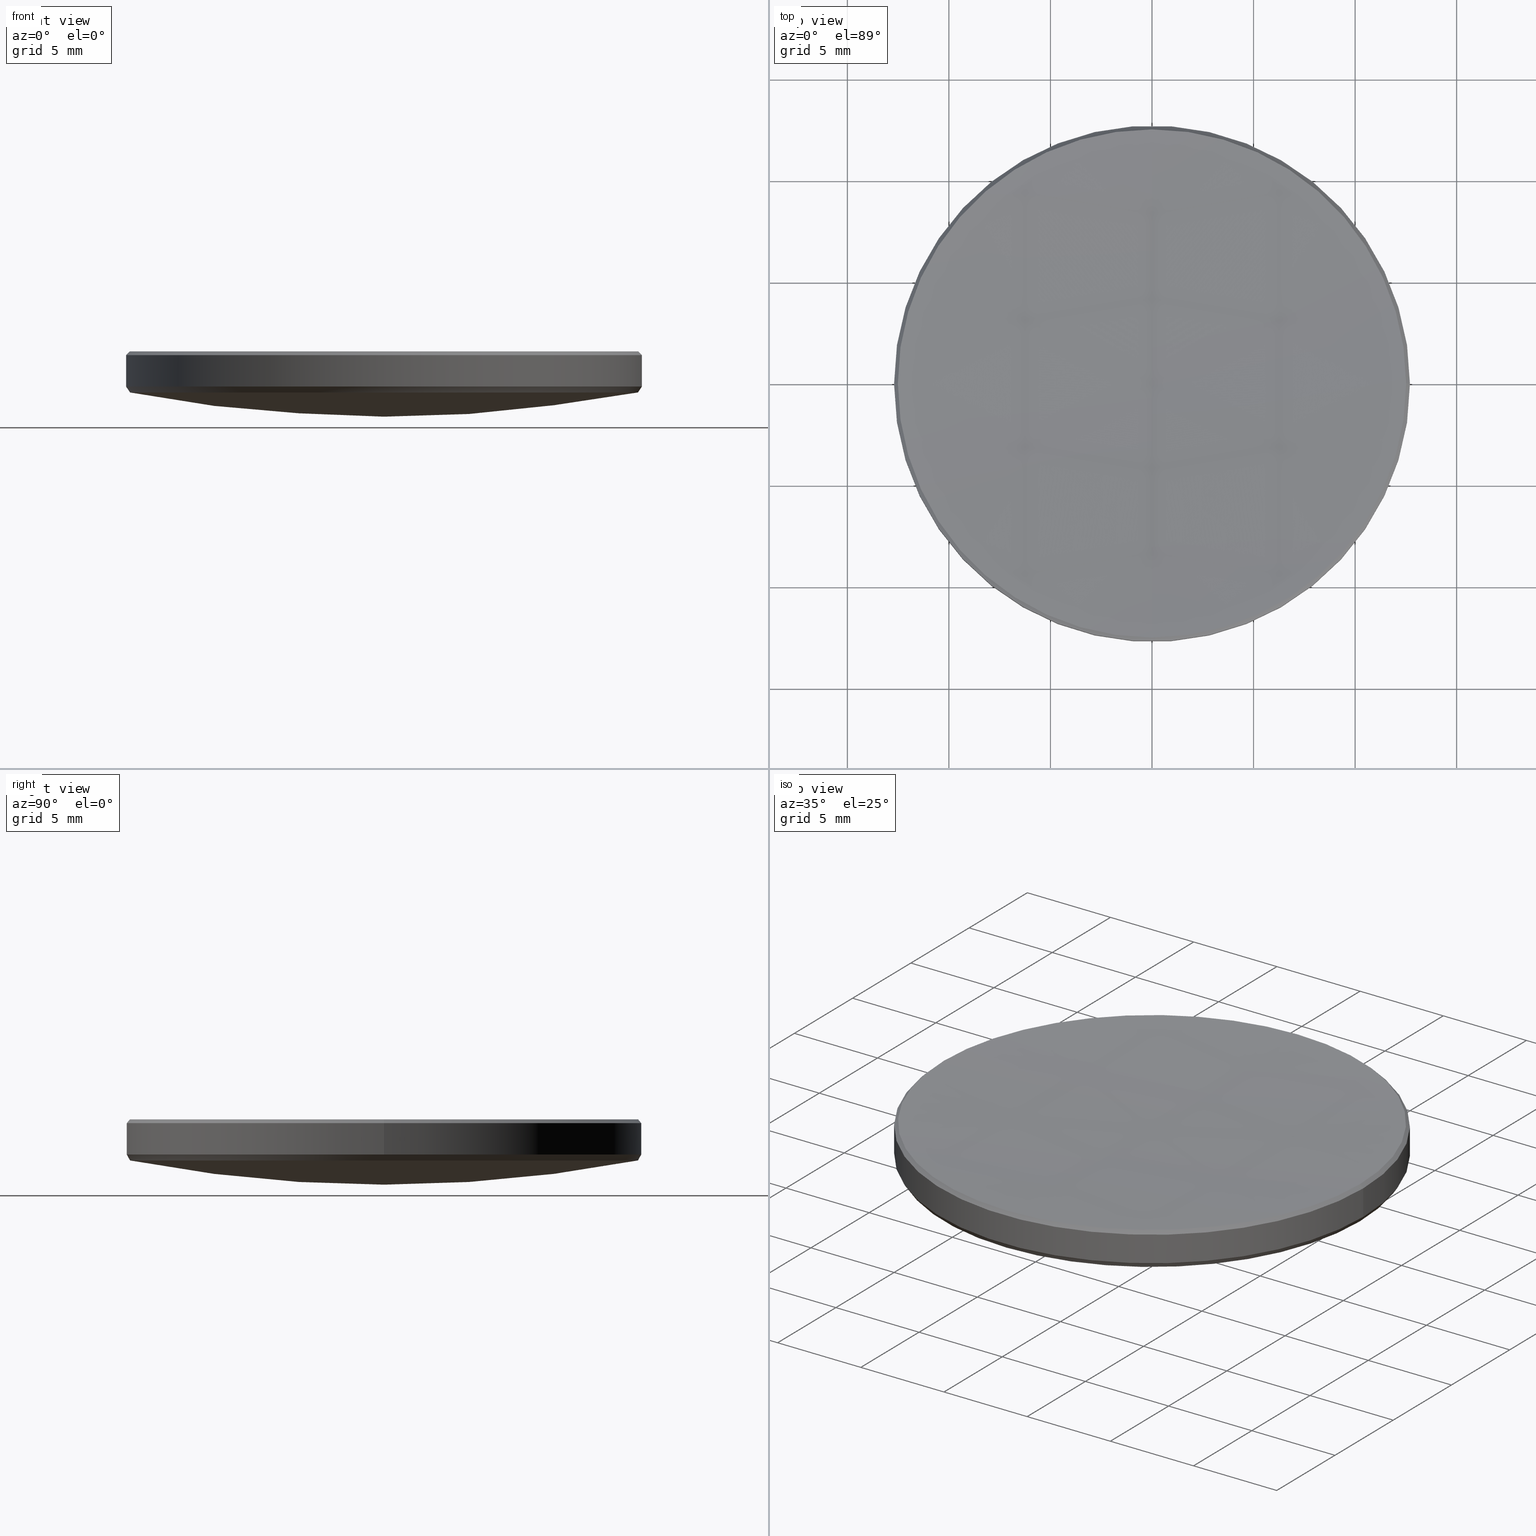
[diagram: canonical four-view strip — front | top / right | iso, engineering-drawing reading convention]
A machine part, canonical four-view strip (front | top / right | iso — engineering-drawing reading convention). The complete STEP part file that produces these views, byte-faithful:
ISO-10303-21;
HEADER;
FILE_DESCRIPTION (( 'STEP AP214' ),
    '1' );
FILE_NAME ('GLM1-025B-200-SWIR.STEP',
    '2024-08-09T02:17:19',
    ( 'Windows User' ),
    ( 'P R C' ),
    'SwSTEP 2.0',
    'SolidWorks 2022',
    '' );
FILE_SCHEMA (( 'AUTOMOTIVE_DESIGN' ));
ENDSEC;

DATA;
#1 = DIRECTION ( 'NONE',  ( -0.000000000000000000, -0.000000000000000000, 1.000000000000000000 ) ) ;
#2 = AXIS2_PLACEMENT_3D ( 'NONE', #40, #325, #13 ) ;
#3 = PRODUCT_DEFINITION ( 'δ֪', '', #328, #277 ) ;
#4 = AXIS2_PLACEMENT_3D ( 'NONE', #157, #29, #289 ) ;
#5 = CARTESIAN_POINT ( 'NONE',  ( 0.000000000000000000, 12.50395849586554675, 3.961956115965656444 ) ) ;
#6 = ORIENTED_EDGE ( 'NONE', *, *, #269, .T. ) ;
#7 = DIRECTION ( 'NONE',  ( -1.224646799147352961E-16, -1.000000000000000000, 0.000000000000000000 ) ) ;
#8 = VERTEX_POINT ( 'NONE', #5 ) ;
#9 =( NAMED_UNIT ( * ) PLANE_ANGLE_UNIT ( ) SI_UNIT ( $, .RADIAN. ) );
#10 = AXIS2_PLACEMENT_3D ( 'NONE', #252, #99, #126 ) ;
#11 = STYLED_ITEM ( 'NONE', ( #81 ), #223 ) ;
#12 = DIRECTION ( 'NONE',  ( -1.000000000000000000, 0.000000000000000000, 0.000000000000000000 ) ) ;
#13 = DIRECTION ( 'NONE',  ( -1.000000000000000000, 0.000000000000000000, 0.000000000000000000 ) ) ;
#14 = SURFACE_STYLE_FILL_AREA ( #43 ) ;
#15 = ORIENTED_EDGE ( 'NONE', *, *, #234, .F. ) ;
#16 = CYLINDRICAL_SURFACE ( 'NONE', #160, 12.69999999999999929 ) ;
#17 = AXIS2_PLACEMENT_3D ( 'NONE', #256, #279, #315 ) ;
#18 = ORIENTED_EDGE ( 'NONE', *, *, #75, .T. ) ;
#19 = CARTESIAN_POINT ( 'NONE',  ( 0.000000000000000000, 0.000000000000000000, 4.253353967830220128 ) ) ;
#20 = VERTEX_POINT ( 'NONE', #259 ) ;
#21 = EDGE_LOOP ( 'NONE', ( #276, #222, #330, #190, #125 ) ) ;
#22 = AXIS2_PLACEMENT_3D ( 'NONE', #33, #134, #209 ) ;
#23 = AXIS2_PLACEMENT_3D ( 'NONE', #91, #191, #273 ) ;
#24 = DIRECTION ( 'NONE',  ( 0.000000000000000000, 0.000000000000000000, -1.000000000000000000 ) ) ;
#25 = CONICAL_SURFACE ( 'NONE', #60, 12.51297231911478214, 0.7853981633974530530 ) ;
#26 = ORIENTED_EDGE ( 'NONE', *, *, #303, .F. ) ;
#27 = CIRCLE ( 'NONE', #203, 12.51297231911478569 ) ;
#28 = EDGE_CURVE ( 'NONE', #245, #302, #105, .T. ) ;
#29 = DIRECTION ( 'NONE',  ( -1.000000000000000000, 0.000000000000000000, 0.000000000000000000 ) ) ;
#30 = DIRECTION ( 'NONE',  ( -1.000000000000000000, 0.000000000000000000, 0.000000000000000000 ) ) ;
#31 =( NAMED_UNIT ( * ) SI_UNIT ( $, .STERADIAN. ) SOLID_ANGLE_UNIT ( ) );
#32 = ADVANCED_FACE ( 'NONE', ( #206 ), #25, .T. ) ;
#33 = CARTESIAN_POINT ( 'NONE',  ( 0.000000000000000000, 0.000000000000000000, 3.961956115965656444 ) ) ;
#34 = SURFACE_STYLE_FILL_AREA ( #260 ) ;
#35 = DIRECTION ( 'NONE',  ( 1.000000000000000000, 0.000000000000000000, 0.000000000000000000 ) ) ;
#36 = PRESENTATION_LAYER_ASSIGNMENT (  '', '', ( #287 ) ) ;
#37 = AXIS2_PLACEMENT_3D ( 'NONE', #100, #54, #253 ) ;
#38 = ADVANCED_FACE ( 'NONE', ( #318 ), #107, .T. ) ;
#39 = LINE ( 'NONE', #137, #180 ) ;
#40 = CARTESIAN_POINT ( 'NONE',  ( 0.000000000000000000, 0.000000000000000000, 4.253353967830220128 ) ) ;
#41 = DIRECTION ( 'NONE',  ( -0.000000000000000000, -0.000000000000000000, -1.000000000000000000 ) ) ;
#42 =( GEOMETRIC_REPRESENTATION_CONTEXT ( 3 ) GLOBAL_UNCERTAINTY_ASSIGNED_CONTEXT ( ( #212 ) ) GLOBAL_UNIT_ASSIGNED_CONTEXT ( ( #246, #196, #73 ) ) REPRESENTATION_CONTEXT ( 'NONE', 'WORKASPACE' ) );
#43 = FILL_AREA_STYLE ('',( #295 ) ) ;
#44 = EDGE_LOOP ( 'NONE', ( #90, #18, #115, #121, #175 ) ) ;
#45 = ORIENTED_EDGE ( 'NONE', *, *, #207, .T. ) ;
#46 = DIRECTION ( 'NONE',  ( -1.000000000000000000, 0.000000000000000000, 0.000000000000000000 ) ) ;
#47 = AXIS2_PLACEMENT_3D ( 'NONE', #220, #249, #254 ) ;
#48 = CONICAL_SURFACE ( 'NONE', #232, 12.69999999999999929, 0.5922108289621466071 ) ;
#49 = ORIENTED_EDGE ( 'NONE', *, *, #28, .T. ) ;
#50 = ADVANCED_FACE ( 'NONE', ( #153 ), #235, .F. ) ;
#51 = DIRECTION ( 'NONE',  ( -0.000000000000000000, -0.000000000000000000, 1.000000000000000000 ) ) ;
#52 = CARTESIAN_POINT ( 'NONE',  ( -12.69999999999999929, 0.000000000000000000, 5.800000000000027356 ) ) ;
#53 = ORIENTED_EDGE ( 'NONE', *, *, #177, .T. ) ;
#54 = DIRECTION ( 'NONE',  ( -1.000000000000000000, 0.000000000000000000, 0.000000000000000000 ) ) ;
#55 = EDGE_CURVE ( 'NONE', #8, #245, #231, .T. ) ;
#56 = APPLICATION_PROTOCOL_DEFINITION ( 'draft international standard', 'automotive_design', 1998, #274 ) ;
#57 = VERTEX_POINT ( 'NONE', #233 ) ;
#58 = FILL_AREA_STYLE_COLOUR ( '', #116 ) ;
#59 = DIRECTION ( 'NONE',  ( 0.000000000000000000, 0.000000000000000000, -1.000000000000000000 ) ) ;
#60 = AXIS2_PLACEMENT_3D ( 'NONE', #286, #59, #156 ) ;
#61 = DIRECTION ( 'NONE',  ( 1.000000000000000000, 0.000000000000000000, 0.000000000000000000 ) ) ;
#62 = DIRECTION ( 'NONE',  ( 0.5581967294551084535, 0.000000000000000000, 0.8297086303188730971 ) ) ;
#63 = CONICAL_SURFACE ( 'NONE', #294, 12.51297231911478214, 0.7853981633974530530 ) ;
#64 = VECTOR ( 'NONE', #62, 1000.000000000000000 ) ;
#65 = FACE_OUTER_BOUND ( 'NONE', #317, .T. ) ;
#66 = ORIENTED_EDGE ( 'NONE', *, *, #70, .F. ) ;
#67 = FACE_OUTER_BOUND ( 'NONE', #225, .T. ) ;
#68 = AXIS2_PLACEMENT_3D ( 'NONE', #258, #132, #30 ) ;
#69 = CIRCLE ( 'NONE', #77, 12.69999999999999929 ) ;
#70 = EDGE_CURVE ( 'NONE', #106, #181, #205, .T. ) ;
#71 = CARTESIAN_POINT ( 'NONE',  ( -12.69999999999999929, 0.000000000000000000, 10.00000000000000000 ) ) ;
#72 = ORIENTED_EDGE ( 'NONE', *, *, #103, .F. ) ;
#73 =( NAMED_UNIT ( * ) SI_UNIT ( $, .STERADIAN. ) SOLID_ANGLE_UNIT ( ) );
#74 = DIRECTION ( 'NONE',  ( -0.5581967294551084535, 6.835938380217195988E-17, 0.8297086303188730971 ) ) ;
#75 = EDGE_CURVE ( 'NONE', #248, #181, #201, .T. ) ;
#76 = DIRECTION ( 'NONE',  ( -1.000000000000000000, 1.224646799147353207E-16, 0.000000000000000000 ) ) ;
#77 = AXIS2_PLACEMENT_3D ( 'NONE', #163, #240, #239 ) ;
#78 = ORIENTED_EDGE ( 'NONE', *, *, #316, .F. ) ;
#79 = DIRECTION ( 'NONE',  ( -0.000000000000000000, -0.000000000000000000, 1.000000000000000000 ) ) ;
#80 = EDGE_LOOP ( 'NONE', ( #26, #15, #173, #169, #236 ) ) ;
#81 = PRESENTATION_STYLE_ASSIGNMENT (( #154 ) ) ;
#82 = DIRECTION ( 'NONE',  ( 0.000000000000000000, 0.000000000000000000, -1.000000000000000000 ) ) ;
#83 = ADVANCED_FACE ( 'NONE', ( #247 ), #63, .T. ) ;
#84 = FACE_OUTER_BOUND ( 'NONE', #87, .T. ) ;
#85 = AXIS2_PLACEMENT_3D ( 'NONE', #133, #82, #61 ) ;
#86 =( NAMED_UNIT ( * ) SI_UNIT ( $, .STERADIAN. ) SOLID_ANGLE_UNIT ( ) );
#87 = EDGE_LOOP ( 'NONE', ( #120, #195, #272, #129 ) ) ;
#88 = DIRECTION ( 'NONE',  ( -1.000000000000000000, 0.000000000000000000, 0.000000000000000000 ) ) ;
#89 = CARTESIAN_POINT ( 'NONE',  ( 0.000000000000000000, 0.000000000000000000, 68.91943083545942272 ) ) ;
#90 = ORIENTED_EDGE ( 'NONE', *, *, #184, .F. ) ;
#91 = CARTESIAN_POINT ( 'NONE',  ( 0.000000000000000000, 0.000000000000000000, 68.91943083545942272 ) ) ;
#92 = EDGE_CURVE ( 'NONE', #94, #302, #95, .T. ) ;
#93 = DIRECTION ( 'NONE',  ( 1.000000000000000000, 0.000000000000000000, 0.000000000000000000 ) ) ;
#94 = VERTEX_POINT ( 'NONE', #224 ) ;
#95 = CIRCLE ( 'NONE', #47, 66.15000000000000568 ) ;
#96 = VERTEX_POINT ( 'NONE', #194 ) ;
#97 = PRODUCT_RELATED_PRODUCT_CATEGORY ( 'part', '', ( #113 ) ) ;
#98 = ORIENTED_EDGE ( 'NONE', *, *, #92, .F. ) ;
#99 = DIRECTION ( 'NONE',  ( -0.000000000000000000, -0.000000000000000000, 1.000000000000000000 ) ) ;
#100 = CARTESIAN_POINT ( 'NONE',  ( 0.000000000000000000, 0.000000000000000000, 187.7468186791724918 ) ) ;
#101 = CIRCLE ( 'NONE', #271, 12.69999999999999929 ) ;
#102 = DIRECTION ( 'NONE',  ( 1.000000000000000000, 0.000000000000000000, 0.000000000000000000 ) ) ;
#103 = EDGE_CURVE ( 'NONE', #94, #8, #283, .T. ) ;
#104 = PRODUCT_DEFINITION_SHAPE ( 'NONE', 'NONE',  #3 ) ;
#105 = CIRCLE ( 'NONE', #22, 12.50395849586555030 ) ;
#106 = VERTEX_POINT ( 'NONE', #52 ) ;
#107 = CYLINDRICAL_SURFACE ( 'NONE', #68, 12.69999999999999929 ) ;
#108 = ORIENTED_EDGE ( 'NONE', *, *, #92, .T. ) ;
#109 = MECHANICAL_DESIGN_GEOMETRIC_PRESENTATION_REPRESENTATION (  '', ( #287 ), #327 ) ;
#110 = AXIS2_PLACEMENT_3D ( 'NONE', #323, #307, #297 ) ;
#111 = LINE ( 'NONE', #211, #64 ) ;
#112 = DIRECTION ( 'NONE',  ( 0.000000000000000000, 0.000000000000000000, -1.000000000000000000 ) ) ;
#113 = PRODUCT ( 'GLM1-025B-200-SWIR', 'GLM1-025B-200-SWIR', '', ( #284 ) ) ;
#114 = DIRECTION ( 'NONE',  ( -1.000000000000000000, 0.000000000000000000, 0.000000000000000000 ) ) ;
#115 = ORIENTED_EDGE ( 'NONE', *, *, #130, .F. ) ;
#116 = COLOUR_RGB ( '',1.000000000000000000, 1.000000000000000000, 1.000000000000000000 ) ;
#117 = FACE_OUTER_BOUND ( 'NONE', #215, .T. ) ;
#118 =( LENGTH_UNIT ( ) NAMED_UNIT ( * ) SI_UNIT ( .MILLI., .METRE. ) );
#119 = EDGE_CURVE ( 'NONE', #243, #57, #300, .T. ) ;
#120 = ORIENTED_EDGE ( 'NONE', *, *, #123, .F. ) ;
#121 = ORIENTED_EDGE ( 'NONE', *, *, #213, .F. ) ;
#122 = CIRCLE ( 'NONE', #313, 12.69999999999999929 ) ;
#123 = EDGE_CURVE ( 'NONE', #96, #57, #131, .T. ) ;
#124 = CIRCLE ( 'NONE', #110, 182.1899999999999977 ) ;
#125 = ORIENTED_EDGE ( 'NONE', *, *, #177, .F. ) ;
#126 = DIRECTION ( 'NONE',  ( 1.000000000000000000, 0.000000000000000000, 0.000000000000000000 ) ) ;
#127 = AXIS2_PLACEMENT_3D ( 'NONE', #244, #136, #35 ) ;
#128 = FACE_OUTER_BOUND ( 'NONE', #44, .T. ) ;
#129 = ORIENTED_EDGE ( 'NONE', *, *, #119, .T. ) ;
#130 = EDGE_CURVE ( 'NONE', #166, #181, #101, .T. ) ;
#131 = CIRCLE ( 'NONE', #312, 182.1899999999999977 ) ;
#132 = DIRECTION ( 'NONE',  ( -0.000000000000000000, -0.000000000000000000, -1.000000000000000000 ) ) ;
#133 = CARTESIAN_POINT ( 'NONE',  ( 0.000000000000000000, 0.000000000000000000, 3.961956115965656444 ) ) ;
#134 = DIRECTION ( 'NONE',  ( 0.000000000000000000, 0.000000000000000000, -1.000000000000000000 ) ) ;
#135 = AXIS2_PLACEMENT_3D ( 'NONE', #230, #257, #228 ) ;
#136 = DIRECTION ( 'NONE',  ( 0.000000000000000000, 0.000000000000000000, -1.000000000000000000 ) ) ;
#137 = CARTESIAN_POINT ( 'NONE',  ( 12.51297231911478214, 1.532397149842335037E-15, 5.987027680885242731 ) ) ;
#138 =( NAMED_UNIT ( * ) PLANE_ANGLE_UNIT ( ) SI_UNIT ( $, .RADIAN. ) );
#139 = ORIENTED_EDGE ( 'NONE', *, *, #70, .T. ) ;
#140 = CIRCLE ( 'NONE', #2, 12.69999999999999929 ) ;
#141 = CARTESIAN_POINT ( 'NONE',  ( -12.69999999999999929, 0.000000000000000000, 4.253353967830220128 ) ) ;
#142 = ORIENTED_EDGE ( 'NONE', *, *, #130, .T. ) ;
#143 = MANIFOLD_SOLID_BREP ( '����1', #308 ) ;
#144 = ORIENTED_EDGE ( 'NONE', *, *, #198, .T. ) ;
#145 = AXIS2_PLACEMENT_3D ( 'NONE', #89, #114, #189 ) ;
#146 = DIRECTION ( 'NONE',  ( 0.000000000000000000, 0.000000000000000000, -1.000000000000000000 ) ) ;
#147 = ORIENTED_EDGE ( 'NONE', *, *, #207, .F. ) ;
#148 = CARTESIAN_POINT ( 'NONE',  ( 0.000000000000000000, 0.000000000000000000, 5.987027680885187664 ) ) ;
#149 = ADVANCED_FACE ( 'NONE', ( #65 ), #165, .T. ) ;
#150 = ORIENTED_EDGE ( 'NONE', *, *, #184, .T. ) ;
#151 = DIRECTION ( 'NONE',  ( 1.000000000000000000, 0.000000000000000000, 0.000000000000000000 ) ) ;
#152 = VECTOR ( 'NONE', #164, 1000.000000000000114 ) ;
#153 = FACE_OUTER_BOUND ( 'NONE', #296, .T. ) ;
#154 = SURFACE_STYLE_USAGE ( .BOTH. , #210 ) ;
#155 =( GEOMETRIC_REPRESENTATION_CONTEXT ( 3 ) GLOBAL_UNCERTAINTY_ASSIGNED_CONTEXT ( ( #161 ) ) GLOBAL_UNIT_ASSIGNED_CONTEXT ( ( #204, #9, #31 ) ) REPRESENTATION_CONTEXT ( 'NONE', 'WORKASPACE' ) );
#156 = DIRECTION ( 'NONE',  ( -1.000000000000000000, 0.000000000000000000, 0.000000000000000000 ) ) ;
#157 = CARTESIAN_POINT ( 'NONE',  ( 0.000000000000000000, 0.000000000000000000, 187.7468186791724918 ) ) ;
#158 = COLOUR_RGB ( '',1.000000000000000000, 1.000000000000000000, 1.000000000000000000 ) ;
#159 = PRESENTATION_LAYER_ASSIGNMENT (  '', '', ( #11 ) ) ;
#160 = AXIS2_PLACEMENT_3D ( 'NONE', #216, #322, #88 ) ;
#161 = UNCERTAINTY_MEASURE_WITH_UNIT (LENGTH_MEASURE( 1.000000000000000082E-05 ), #204, 'distance_accuracy_value', 'NONE');
#162 = CARTESIAN_POINT ( 'NONE',  ( -12.51297231911478214, 0.000000000000000000, 5.987027680885242731 ) ) ;
#163 = CARTESIAN_POINT ( 'NONE',  ( 0.000000000000000000, 0.000000000000000000, 5.800000000000027356 ) ) ;
#164 = DIRECTION ( 'NONE',  ( -0.7071067811865507924, 0.000000000000000000, -0.7071067811865441310 ) ) ;
#165 = SPHERICAL_SURFACE ( 'NONE', #145, 66.15000000000000568 ) ;
#166 = VERTEX_POINT ( 'NONE', #168 ) ;
#167 = CARTESIAN_POINT ( 'NONE',  ( 12.69999999999999929, 1.555301434917138433E-15, 10.00000000000000000 ) ) ;
#168 = CARTESIAN_POINT ( 'NONE',  ( 12.69999999999999929, 1.555301434917138433E-15, 4.253353967830220128 ) ) ;
#169 = ORIENTED_EDGE ( 'NONE', *, *, #291, .T. ) ;
#170 = CIRCLE ( 'NONE', #226, 12.50395849586555030 ) ;
#171 = EDGE_CURVE ( 'NONE', #217, #106, #122, .T. ) ;
#172 = DIRECTION ( 'NONE',  ( -0.000000000000000000, -0.000000000000000000, -1.000000000000000000 ) ) ;
#173 = ORIENTED_EDGE ( 'NONE', *, *, #119, .F. ) ;
#174 = DIRECTION ( 'NONE',  ( 1.000000000000000000, -0.000000000000000000, 0.000000000000000000 ) ) ;
#175 = ORIENTED_EDGE ( 'NONE', *, *, #55, .F. ) ;
#176 = VERTEX_POINT ( 'NONE', #292 ) ;
#177 = EDGE_CURVE ( 'NONE', #181, #166, #140, .T. ) ;
#178 = CARTESIAN_POINT ( 'NONE',  ( 0.000000000000000000, 0.000000000000000000, 4.253353967830220128 ) ) ;
#179 = SPHERICAL_SURFACE ( 'NONE', #37, 182.1899999999999977 ) ;
#180 = VECTOR ( 'NONE', #241, 1000.000000000000114 ) ;
#181 = VERTEX_POINT ( 'NONE', #141 ) ;
#182 = AXIS2_PLACEMENT_3D ( 'NONE', #305, #174, #146 ) ;
#183 = ORIENTED_EDGE ( 'NONE', *, *, #269, .F. ) ;
#184 = EDGE_CURVE ( 'NONE', #248, #8, #208, .T. ) ;
#185 = DIRECTION ( 'NONE',  ( 0.000000000000000000, 0.000000000000000000, -1.000000000000000000 ) ) ;
#186 = LINE ( 'NONE', #162, #152 ) ;
#187 = APPLICATION_CONTEXT ( 'automotive_design' ) ;
#188 = ORIENTED_EDGE ( 'NONE', *, *, #123, .T. ) ;
#189 = DIRECTION ( 'NONE',  ( 0.000000000000000000, 1.000000000000000000, 0.000000000000000000 ) ) ;
#190 = ORIENTED_EDGE ( 'NONE', *, *, #213, .T. ) ;
#191 = DIRECTION ( 'NONE',  ( -1.000000000000000000, 0.000000000000000000, 0.000000000000000000 ) ) ;
#192 = ADVANCED_FACE ( 'NONE', ( #299 ), #48, .T. ) ;
#193 = CARTESIAN_POINT ( 'NONE',  ( 0.000000000000000000, 0.000000000000000000, 3.961956115965656444 ) ) ;
#194 = CARTESIAN_POINT ( 'NONE',  ( 0.000000000000000000, 1.115592001683281265E-14, 5.556818679172486952 ) ) ;
#195 = ORIENTED_EDGE ( 'NONE', *, *, #316, .T. ) ;
#196 =( NAMED_UNIT ( * ) PLANE_ANGLE_UNIT ( ) SI_UNIT ( $, .RADIAN. ) );
#197 = CARTESIAN_POINT ( 'NONE',  ( 0.000000000000000000, 0.000000000000000000, 187.7468186791724918 ) ) ;
#198 = EDGE_CURVE ( 'NONE', #302, #248, #170, .T. ) ;
#199 = ORIENTED_EDGE ( 'NONE', *, *, #282, .F. ) ;
#200 = CARTESIAN_POINT ( 'NONE',  ( -12.51297231911478569, 0.000000000000000000, 5.987027680885187664 ) ) ;
#201 = LINE ( 'NONE', #280, #237 ) ;
#202 = CARTESIAN_POINT ( 'NONE',  ( -12.50395849586555030, 1.543297354890224221E-15, 3.961956115965656444 ) ) ;
#203 = AXIS2_PLACEMENT_3D ( 'NONE', #148, #1, #102 ) ;
#204 =( LENGTH_UNIT ( ) NAMED_UNIT ( * ) SI_UNIT ( .MILLI., .METRE. ) );
#205 = LINE ( 'NONE', #71, #242 ) ;
#206 = FACE_OUTER_BOUND ( 'NONE', #321, .T. ) ;
#207 = EDGE_CURVE ( 'NONE', #106, #217, #69, .T. ) ;
#208 = CIRCLE ( 'NONE', #127, 12.50395849586555030 ) ;
#209 = DIRECTION ( 'NONE',  ( 1.000000000000000000, 0.000000000000000000, 0.000000000000000000 ) ) ;
#210 = SURFACE_SIDE_STYLE ('',( #34 ) ) ;
#211 = CARTESIAN_POINT ( 'NONE',  ( 12.69999999999999929, 0.000000000000000000, 4.253353967830220128 ) ) ;
#212 = UNCERTAINTY_MEASURE_WITH_UNIT (LENGTH_MEASURE( 1.000000000000000082E-05 ), #246, 'distance_accuracy_value', 'NONE');
#213 = EDGE_CURVE ( 'NONE', #245, #166, #111, .T. ) ;
#214 = SURFACE_STYLE_USAGE ( .BOTH. , #265 ) ;
#215 = EDGE_LOOP ( 'NONE', ( #45, #311, #142, #66 ) ) ;
#216 = CARTESIAN_POINT ( 'NONE',  ( 0.000000000000000000, 0.000000000000000000, 10.00000000000000000 ) ) ;
#217 = VERTEX_POINT ( 'NONE', #320 ) ;
#218 = SPHERICAL_SURFACE ( 'NONE', #23, 66.15000000000000568 ) ;
#219 = DIRECTION ( 'NONE',  ( -0.000000000000000000, -0.000000000000000000, 1.000000000000000000 ) ) ;
#220 = CARTESIAN_POINT ( 'NONE',  ( 0.000000000000000000, 0.000000000000000000, 68.91943083545942272 ) ) ;
#221 = MECHANICAL_DESIGN_GEOMETRIC_PRESENTATION_REPRESENTATION (  '', ( #11 ), #155 ) ;
#222 = ORIENTED_EDGE ( 'NONE', *, *, #198, .F. ) ;
#223 = ADVANCED_BREP_SHAPE_REPRESENTATION ( 'GLM1-025B-200-SWIR', ( #143, #135 ), #42 ) ;
#224 = CARTESIAN_POINT ( 'NONE',  ( 0.000000000000000000, 4.050519288179870232E-15, 2.769430835459427254 ) ) ;
#225 = EDGE_LOOP ( 'NONE', ( #72, #108, #144, #150 ) ) ;
#226 = AXIS2_PLACEMENT_3D ( 'NONE', #193, #185, #262 ) ;
#227 = SHAPE_DEFINITION_REPRESENTATION ( #104, #223 ) ;
#228 = DIRECTION ( 'NONE',  ( 1.000000000000000000, 0.000000000000000000, 0.000000000000000000 ) ) ;
#229 = ADVANCED_FACE ( 'NONE', ( #84 ), #179, .F. ) ;
#230 = CARTESIAN_POINT ( 'NONE',  ( 0.000000000000000000, 0.000000000000000000, 0.000000000000000000 ) ) ;
#231 = CIRCLE ( 'NONE', #85, 12.50395849586555030 ) ;
#232 = AXIS2_PLACEMENT_3D ( 'NONE', #19, #219, #93 ) ;
#233 = CARTESIAN_POINT ( 'NONE',  ( -1.532397149842306047E-15, -12.51297231911454411, 5.987027680885187664 ) ) ;
#234 = EDGE_CURVE ( 'NONE', #57, #20, #27, .T. ) ;
#235 = SPHERICAL_SURFACE ( 'NONE', #4, 182.1899999999999977 ) ;
#236 = ORIENTED_EDGE ( 'NONE', *, *, #171, .F. ) ;
#237 = VECTOR ( 'NONE', #74, 1000.000000000000000 ) ;
#238 = DIRECTION ( 'NONE',  ( 1.000000000000000000, 0.000000000000000000, 0.000000000000000000 ) ) ;
#239 = DIRECTION ( 'NONE',  ( 1.000000000000000000, 0.000000000000000000, 0.000000000000000000 ) ) ;
#240 = DIRECTION ( 'NONE',  ( 0.000000000000000000, 0.000000000000000000, -1.000000000000000000 ) ) ;
#241 = DIRECTION ( 'NONE',  ( 0.7071067811865507924, 8.659560562354974766E-17, -0.7071067811865441310 ) ) ;
#242 = VECTOR ( 'NONE', #172, 1000.000000000000000 ) ;
#243 = VERTEX_POINT ( 'NONE', #200 ) ;
#244 = CARTESIAN_POINT ( 'NONE',  ( 0.000000000000000000, 0.000000000000000000, 3.961956115965656444 ) ) ;
#245 = VERTEX_POINT ( 'NONE', #309 ) ;
#246 =( LENGTH_UNIT ( ) NAMED_UNIT ( * ) SI_UNIT ( .MILLI., .METRE. ) );
#247 = FACE_OUTER_BOUND ( 'NONE', #80, .T. ) ;
#248 = VERTEX_POINT ( 'NONE', #202 ) ;
#249 = DIRECTION ( 'NONE',  ( -1.000000000000000000, 1.224646799147353207E-16, 0.000000000000000000 ) ) ;
#250 = APPLICATION_PROTOCOL_DEFINITION ( 'draft international standard', 'automotive_design', 1998, #187 ) ;
#251 = DIRECTION ( 'NONE',  ( 1.000000000000000000, 0.000000000000000000, 0.000000000000000000 ) ) ;
#252 = CARTESIAN_POINT ( 'NONE',  ( 0.000000000000000000, 0.000000000000000000, 5.987027680885187664 ) ) ;
#253 = DIRECTION ( 'NONE',  ( 0.000000000000000000, 1.000000000000000000, 0.000000000000000000 ) ) ;
#254 = DIRECTION ( 'NONE',  ( -1.224646799147352961E-16, -1.000000000000000000, 0.000000000000000000 ) ) ;
#255 = AXIS2_PLACEMENT_3D ( 'NONE', #278, #51, #251 ) ;
#256 = CARTESIAN_POINT ( 'NONE',  ( 0.000000000000000000, 0.000000000000000000, 5.987027680885187664 ) ) ;
#257 = DIRECTION ( 'NONE',  ( 0.000000000000000000, 0.000000000000000000, 1.000000000000000000 ) ) ;
#258 = CARTESIAN_POINT ( 'NONE',  ( 0.000000000000000000, 0.000000000000000000, 10.00000000000000000 ) ) ;
#259 = CARTESIAN_POINT ( 'NONE',  ( 12.51297231911478569, 1.543849292379736932E-15, 5.987027680885187664 ) ) ;
#260 = FILL_AREA_STYLE ('',( #58 ) ) ;
#261 = DIRECTION ( 'NONE',  ( -0.000000000000000000, -0.000000000000000000, 1.000000000000000000 ) ) ;
#262 = DIRECTION ( 'NONE',  ( 1.000000000000000000, 0.000000000000000000, 0.000000000000000000 ) ) ;
#263 = ADVANCED_FACE ( 'NONE', ( #128 ), #301, .T. ) ;
#264 = CIRCLE ( 'NONE', #17, 12.51297231911478569 ) ;
#265 = SURFACE_SIDE_STYLE ('',( #14 ) ) ;
#266 = CARTESIAN_POINT ( 'NONE',  ( -1.531293274863309419E-15, -12.50395849586554675, 3.961956115965656444 ) ) ;
#267 = CARTESIAN_POINT ( 'NONE',  ( 0.000000000000000000, 0.000000000000000000, 5.800000000000027356 ) ) ;
#268 = ORIENTED_EDGE ( 'NONE', *, *, #285, .F. ) ;
#269 = EDGE_CURVE ( 'NONE', #20, #176, #264, .T. ) ;
#270 = PRESENTATION_STYLE_ASSIGNMENT (( #214 ) ) ;
#271 = AXIS2_PLACEMENT_3D ( 'NONE', #290, #261, #12 ) ;
#272 = ORIENTED_EDGE ( 'NONE', *, *, #282, .T. ) ;
#273 = DIRECTION ( 'NONE',  ( 0.000000000000000000, 1.000000000000000000, 0.000000000000000000 ) ) ;
#274 = APPLICATION_CONTEXT ( 'automotive_design' ) ;
#275 = ORIENTED_EDGE ( 'NONE', *, *, #55, .T. ) ;
#276 = ORIENTED_EDGE ( 'NONE', *, *, #75, .F. ) ;
#277 = PRODUCT_DEFINITION_CONTEXT ( 'detailed design', #187, 'design' ) ;
#278 = CARTESIAN_POINT ( 'NONE',  ( 0.000000000000000000, 0.000000000000000000, 5.987027680885187664 ) ) ;
#279 = DIRECTION ( 'NONE',  ( -0.000000000000000000, -0.000000000000000000, 1.000000000000000000 ) ) ;
#280 = CARTESIAN_POINT ( 'NONE',  ( -12.69999999999999929, 1.555301434917138433E-15, 4.253353967830220128 ) ) ;
#281 = EDGE_LOOP ( 'NONE', ( #268, #329, #139, #53 ) ) ;
#282 = EDGE_CURVE ( 'NONE', #176, #243, #314, .T. ) ;
#283 = CIRCLE ( 'NONE', #182, 66.15000000000000568 ) ;
#284 = PRODUCT_CONTEXT ( 'NONE', #274, 'mechanical' ) ;
#285 = EDGE_CURVE ( 'NONE', #217, #166, #331, .T. ) ;
#286 = CARTESIAN_POINT ( 'NONE',  ( 0.000000000000000000, 0.000000000000000000, 5.987027680885242731 ) ) ;
#287 = STYLED_ITEM ( 'NONE', ( #270 ), #143 ) ;
#288 = AXIS2_PLACEMENT_3D ( 'NONE', #178, #79, #151 ) ;
#289 = DIRECTION ( 'NONE',  ( 0.000000000000000000, 1.000000000000000000, 0.000000000000000000 ) ) ;
#290 = CARTESIAN_POINT ( 'NONE',  ( 0.000000000000000000, 0.000000000000000000, 4.253353967830220128 ) ) ;
#291 = EDGE_CURVE ( 'NONE', #243, #106, #186, .T. ) ;
#292 = CARTESIAN_POINT ( 'NONE',  ( 0.000000000000000000, 12.51297231911454411, 5.987027680885187664 ) ) ;
#293 = UNCERTAINTY_MEASURE_WITH_UNIT (LENGTH_MEASURE( 1.000000000000000082E-05 ), #118, 'distance_accuracy_value', 'NONE');
#294 = AXIS2_PLACEMENT_3D ( 'NONE', #332, #24, #46 ) ;
#295 = FILL_AREA_STYLE_COLOUR ( '', #158 ) ;
#296 = EDGE_LOOP ( 'NONE', ( #78, #188, #304, #6 ) ) ;
#297 = DIRECTION ( 'NONE',  ( 0.000000000000000000, 0.000000000000000000, -1.000000000000000000 ) ) ;
#298 = ORIENTED_EDGE ( 'NONE', *, *, #303, .T. ) ;
#299 = FACE_OUTER_BOUND ( 'NONE', #21, .T. ) ;
#300 = CIRCLE ( 'NONE', #10, 12.51297231911478569 ) ;
#301 = CONICAL_SURFACE ( 'NONE', #288, 12.69999999999999929, 0.5922108289621466071 ) ;
#302 = VERTEX_POINT ( 'NONE', #266 ) ;
#303 = EDGE_CURVE ( 'NONE', #20, #217, #39, .T. ) ;
#304 = ORIENTED_EDGE ( 'NONE', *, *, #234, .T. ) ;
#305 = CARTESIAN_POINT ( 'NONE',  ( 0.000000000000000000, 0.000000000000000000, 68.91943083545942272 ) ) ;
#306 = ORIENTED_EDGE ( 'NONE', *, *, #103, .T. ) ;
#307 = DIRECTION ( 'NONE',  ( 1.000000000000000000, 0.000000000000000000, 0.000000000000000000 ) ) ;
#308 = CLOSED_SHELL ( 'NONE', ( #32, #263, #50, #326, #310, #38, #149, #229, #192, #83 ) ) ;
#309 = CARTESIAN_POINT ( 'NONE',  ( 12.50395849586555030, 0.000000000000000000, 3.961956115965656444 ) ) ;
#310 = ADVANCED_FACE ( 'NONE', ( #117 ), #16, .T. ) ;
#311 = ORIENTED_EDGE ( 'NONE', *, *, #285, .T. ) ;
#312 = AXIS2_PLACEMENT_3D ( 'NONE', #197, #76, #7 ) ;
#313 = AXIS2_PLACEMENT_3D ( 'NONE', #267, #112, #238 ) ;
#314 = CIRCLE ( 'NONE', #255, 12.51297231911478569 ) ;
#315 = DIRECTION ( 'NONE',  ( 1.000000000000000000, 0.000000000000000000, 0.000000000000000000 ) ) ;
#316 = EDGE_CURVE ( 'NONE', #96, #176, #124, .T. ) ;
#317 = EDGE_LOOP ( 'NONE', ( #98, #306, #275, #49 ) ) ;
#318 = FACE_OUTER_BOUND ( 'NONE', #281, .T. ) ;
#319 = VECTOR ( 'NONE', #41, 1000.000000000000000 ) ;
#320 = CARTESIAN_POINT ( 'NONE',  ( 12.69999999999999929, 1.555301434917138433E-15, 5.800000000000027356 ) ) ;
#321 = EDGE_LOOP ( 'NONE', ( #183, #298, #147, #324, #199 ) ) ;
#322 = DIRECTION ( 'NONE',  ( -0.000000000000000000, -0.000000000000000000, -1.000000000000000000 ) ) ;
#323 = CARTESIAN_POINT ( 'NONE',  ( 0.000000000000000000, 0.000000000000000000, 187.7468186791724918 ) ) ;
#324 = ORIENTED_EDGE ( 'NONE', *, *, #291, .F. ) ;
#325 = DIRECTION ( 'NONE',  ( -0.000000000000000000, -0.000000000000000000, 1.000000000000000000 ) ) ;
#326 = ADVANCED_FACE ( 'NONE', ( #67 ), #218, .T. ) ;
#327 =( GEOMETRIC_REPRESENTATION_CONTEXT ( 3 ) GLOBAL_UNCERTAINTY_ASSIGNED_CONTEXT ( ( #293 ) ) GLOBAL_UNIT_ASSIGNED_CONTEXT ( ( #118, #138, #86 ) ) REPRESENTATION_CONTEXT ( 'NONE', 'WORKASPACE' ) );
#328 = PRODUCT_DEFINITION_FORMATION_WITH_SPECIFIED_SOURCE ( '�κ�', '', #113, .NOT_KNOWN. ) ;
#329 = ORIENTED_EDGE ( 'NONE', *, *, #171, .T. ) ;
#330 = ORIENTED_EDGE ( 'NONE', *, *, #28, .F. ) ;
#331 = LINE ( 'NONE', #167, #319 ) ;
#332 = CARTESIAN_POINT ( 'NONE',  ( 0.000000000000000000, 0.000000000000000000, 5.987027680885242731 ) ) ;
ENDSEC;
END-ISO-10303-21;
